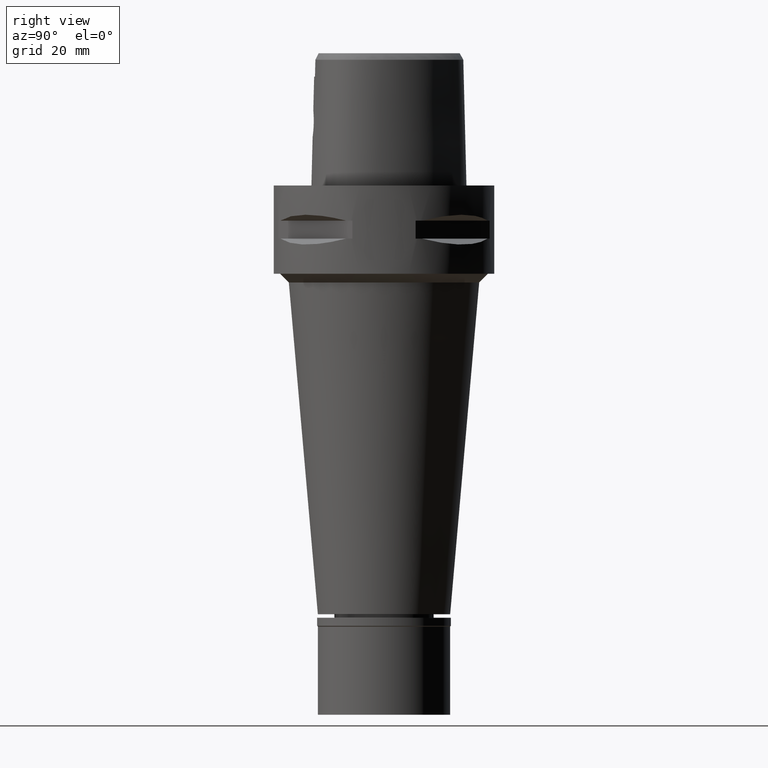
[diagram: clean part render]
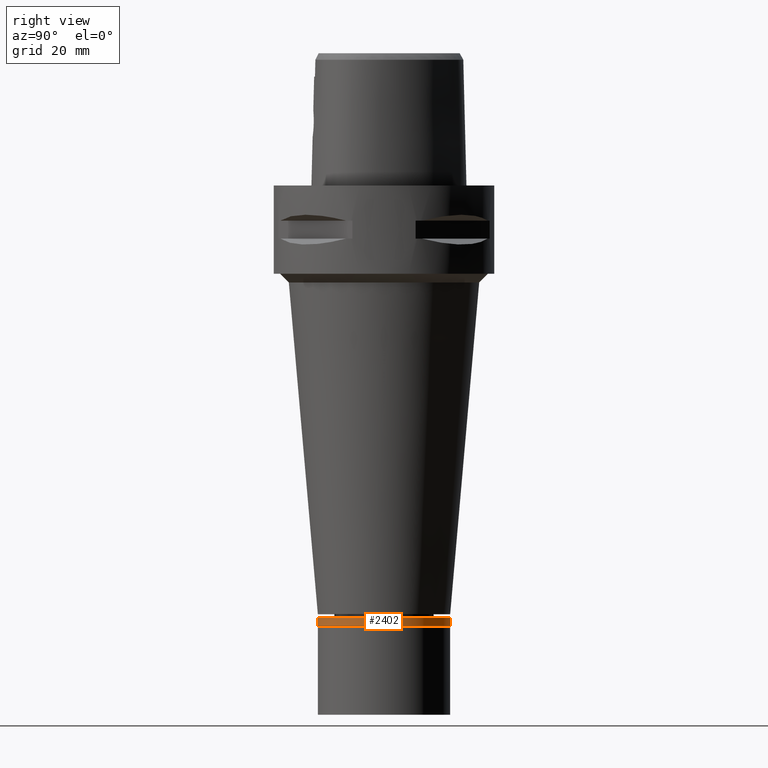
[diagram: same view with one face highlighted and labeled with its STEP entity id]
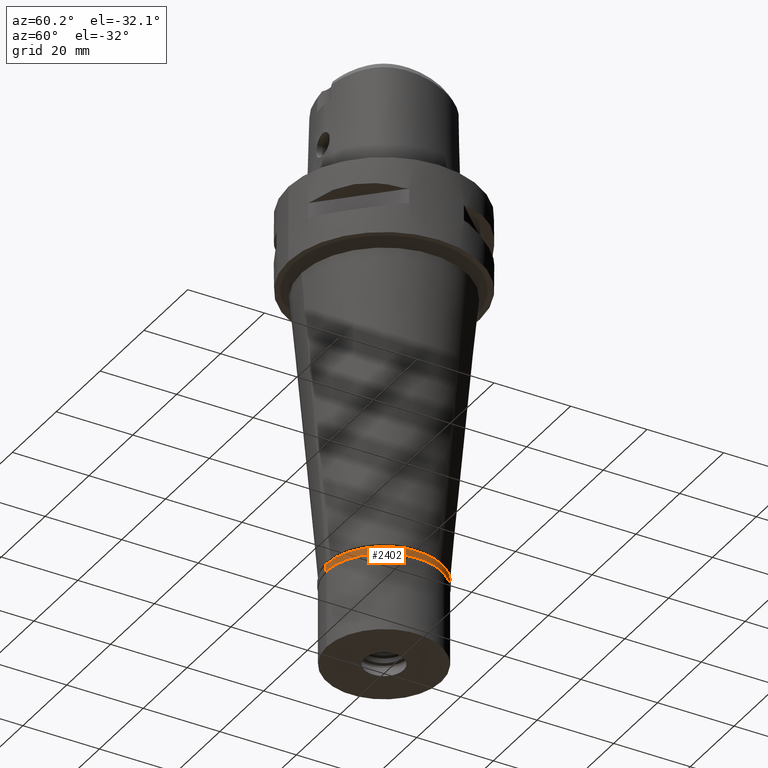
[diagram: same view with one face highlighted and labeled with its STEP entity id]
A machine part, right view. The second image highlights one B-rep face of the part: STEP entity #2402.
A second angle (auxiliary view) of the same face is appended — the face is thin or edge-on in the first view.
In plain terms, the highlighted cylindrical surface (partial cylindrical patch) has radius 15.15 mm, axis along (0, 0, -1).
Its self-contained STEP definition (entity closure, byte-faithful):
#75 = CARTESIAN_POINT ( 'NONE',  ( 0.0000000000000000000, -15.15000000000000036, -1.850000000000000089 ) ) ;
#82 = CYLINDRICAL_SURFACE ( 'NONE', #4037, 15.15000000000000036 ) ;
#144 = ORIENTED_EDGE ( 'NONE', *, *, #4310, .T. ) ;
#225 = DIRECTION ( 'NONE',  ( 0.0000000000000000000, 0.0000000000000000000, -1.000000000000000000 ) ) ;
#334 = ORIENTED_EDGE ( 'NONE', *, *, #2341, .T. ) ;
#444 = CIRCLE ( 'NONE', #1721, 15.15000000000000036 ) ;
#814 = EDGE_LOOP ( 'NONE', ( #144, #1493, #334, #1551 ) ) ;
#815 = VERTEX_POINT ( 'NONE', #4487 ) ;
#827 = EDGE_CURVE ( 'NONE', #1741, #3345, #3678, .T. ) ;
#1179 = AXIS2_PLACEMENT_3D ( 'NONE', #4239, #3138, #2049 ) ;
#1289 = VERTEX_POINT ( 'NONE', #2110 ) ;
#1368 = DIRECTION ( 'NONE',  ( 0.0000000000000000000, 0.0000000000000000000, -1.000000000000000000 ) ) ;
#1493 = ORIENTED_EDGE ( 'NONE', *, *, #827, .T. ) ;
#1551 = ORIENTED_EDGE ( 'NONE', *, *, #3135, .F. ) ;
#1608 = DIRECTION ( 'NONE',  ( 0.0000000000000000000, 0.0000000000000000000, -1.000000000000000000 ) ) ;
#1721 = AXIS2_PLACEMENT_3D ( 'NONE', #3191, #2386, #4737 ) ;
#1741 = VERTEX_POINT ( 'NONE', #4296 ) ;
#2041 = VECTOR ( 'NONE', #1368, 1000.000000000000000 ) ;
#2049 = DIRECTION ( 'NONE',  ( 0.0000000000000000000, 1.000000000000000000, 0.0000000000000000000 ) ) ;
#2110 = CARTESIAN_POINT ( 'NONE',  ( 0.0000000000000000000, 15.15000000000000036, 0.0000000000000000000 ) ) ;
#2341 = EDGE_CURVE ( 'NONE', #3345, #815, #444, .T. ) ;
#2386 = DIRECTION ( 'NONE',  ( 0.0000000000000000000, 0.0000000000000000000, 1.000000000000000000 ) ) ;
#2402 = ADVANCED_FACE ( 'NONE', ( #3500 ), #82, .T. ) ;
#2430 = CIRCLE ( 'NONE', #1179, 15.15000000000000036 ) ;
#3122 = DIRECTION ( 'NONE',  ( 0.0000000000000000000, -1.000000000000000000, 0.0000000000000000000 ) ) ;
#3135 = EDGE_CURVE ( 'NONE', #1289, #815, #3265, .T. ) ;
#3138 = DIRECTION ( 'NONE',  ( 0.0000000000000000000, 0.0000000000000000000, -1.000000000000000000 ) ) ;
#3143 = CARTESIAN_POINT ( 'NONE',  ( 0.0000000000000000000, 0.0000000000000000000, 0.0000000000000000000 ) ) ;
#3191 = CARTESIAN_POINT ( 'NONE',  ( 0.0000000000000000000, 0.0000000000000000000, -1.850000000000000089 ) ) ;
#3265 = LINE ( 'NONE', #4811, #2041 ) ;
#3345 = VERTEX_POINT ( 'NONE', #75 ) ;
#3500 = FACE_OUTER_BOUND ( 'NONE', #814, .T. ) ;
#3678 = LINE ( 'NONE', #4139, #4273 ) ;
#4037 = AXIS2_PLACEMENT_3D ( 'NONE', #3143, #1608, #3122 ) ;
#4139 = CARTESIAN_POINT ( 'NONE',  ( 0.0000000000000000000, -15.15000000000000036, 0.0000000000000000000 ) ) ;
#4239 = CARTESIAN_POINT ( 'NONE',  ( 0.0000000000000000000, 0.0000000000000000000, 0.0000000000000000000 ) ) ;
#4273 = VECTOR ( 'NONE', #225, 1000.000000000000000 ) ;
#4296 = CARTESIAN_POINT ( 'NONE',  ( 0.0000000000000000000, -15.15000000000000036, 0.0000000000000000000 ) ) ;
#4310 = EDGE_CURVE ( 'NONE', #1289, #1741, #2430, .T. ) ;
#4487 = CARTESIAN_POINT ( 'NONE',  ( 0.0000000000000000000, 15.15000000000000036, -1.850000000000000089 ) ) ;
#4737 = DIRECTION ( 'NONE',  ( 0.0000000000000000000, -1.000000000000000000, 0.0000000000000000000 ) ) ;
#4811 = CARTESIAN_POINT ( 'NONE',  ( 0.0000000000000000000, 15.15000000000000036, 0.0000000000000000000 ) ) ;